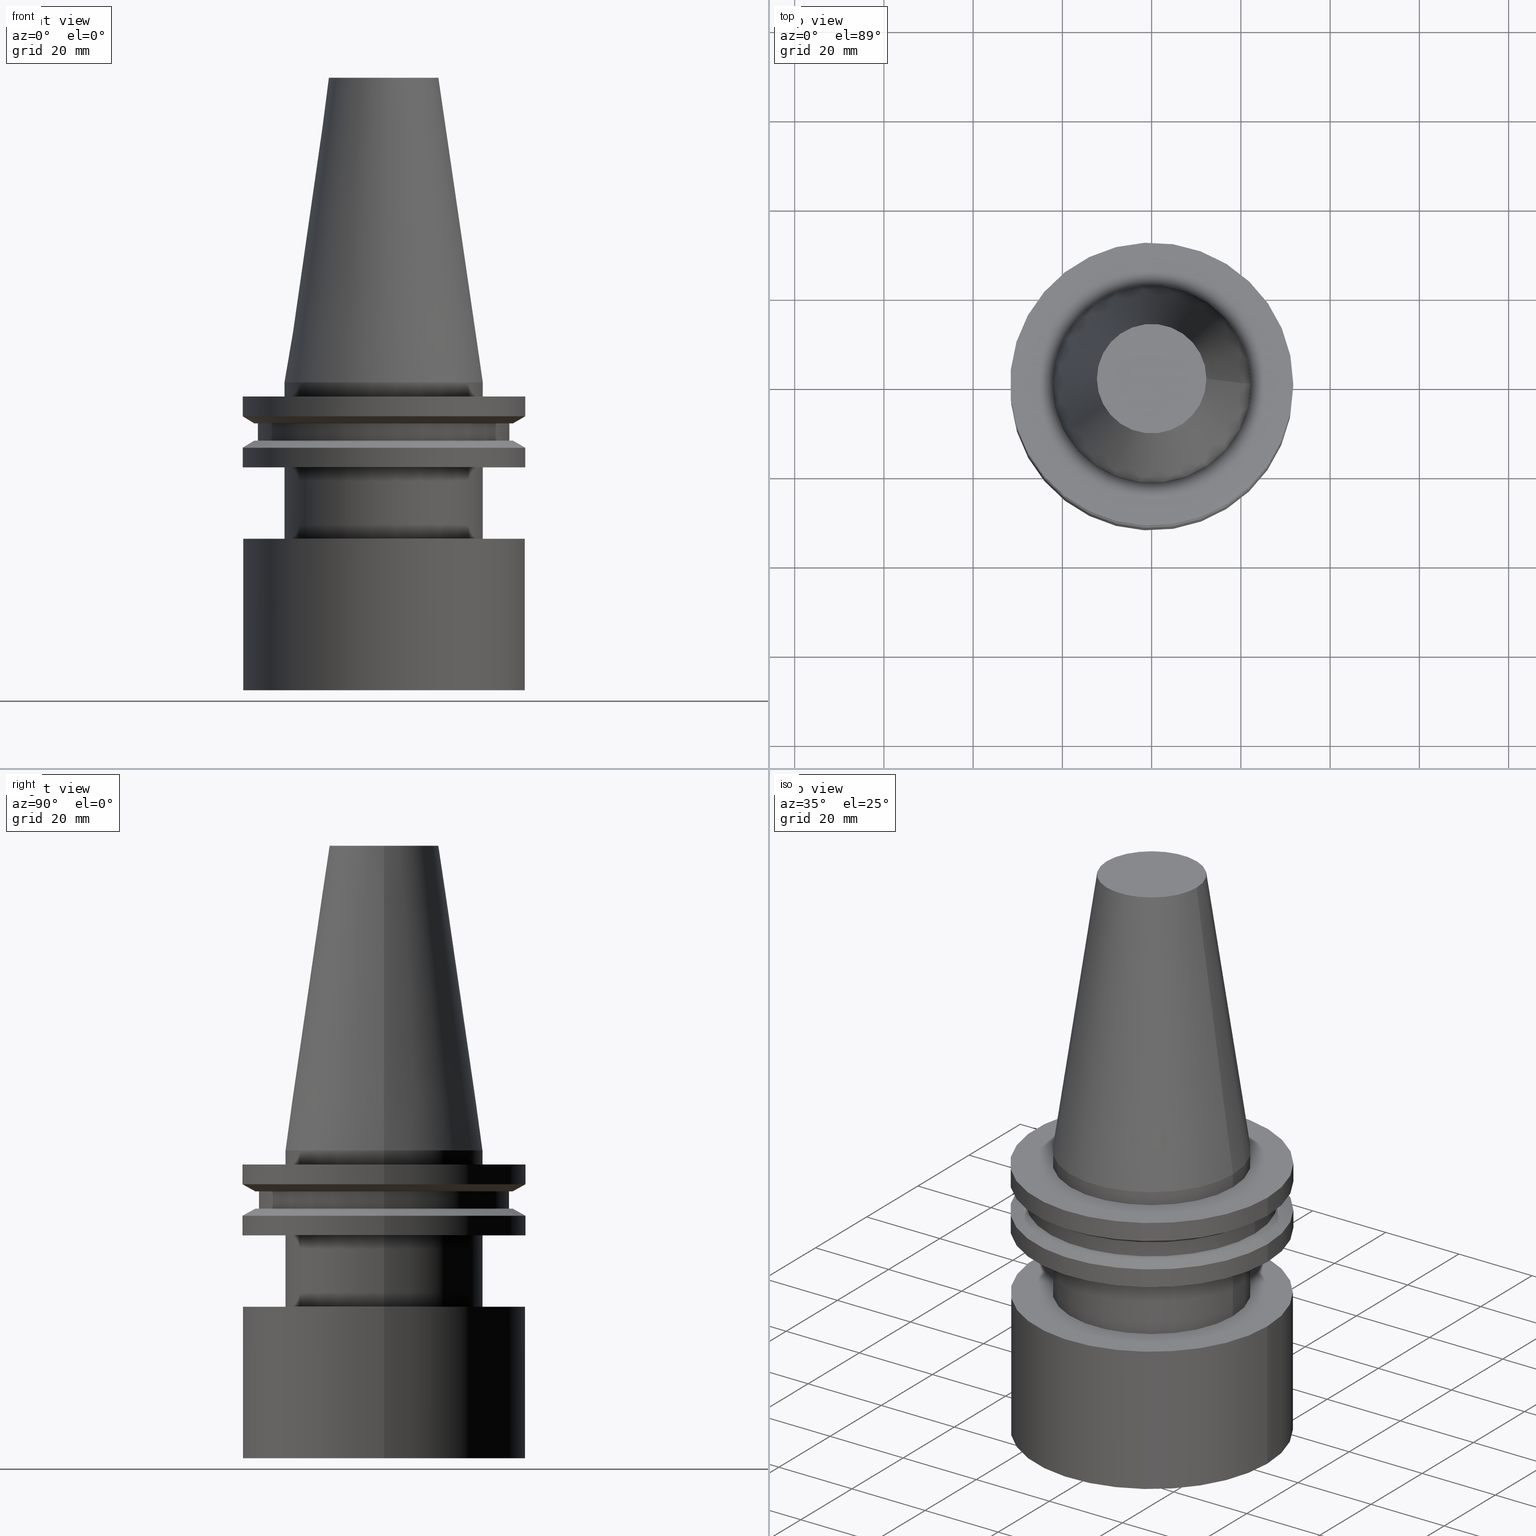
[diagram: canonical four-view strip — front | top / right | iso, engineering-drawing reading convention]
A machine part, canonical four-view strip (front | top / right | iso — engineering-drawing reading convention). The complete STEP part file that produces these views, byte-faithful:
ISO-10303-21;
HEADER;
FILE_DESCRIPTION (( 'STEP AP203' ),
    '1' );
FILE_NAME ('11.326.862.stp',
    '2022-03-09T15:07:12',
    ( '' ),
    ( '' ),
    'SwSTEP 2.0',
    'SolidWorks 2021',
    '' );
FILE_SCHEMA (( 'CONFIG_CONTROL_DESIGN' ));
ENDSEC;

DATA;
#1 = ORIENTED_EDGE ( 'NONE', *, *, #369, .T. ) ;
#2 = FACE_OUTER_BOUND ( 'NONE', #327, .T. ) ;
#3 = CIRCLE ( 'NONE', #89, 22.22500000000000142 ) ;
#4 = EDGE_CURVE ( 'NONE', #235, #235, #127, .T. ) ;
#5 = LOCAL_TIME ( 9, 7, 12.00000000000000000, #203 ) ;
#6 = CC_DESIGN_DATE_AND_TIME_ASSIGNMENT ( #91, #85, ( #378 ) ) ;
#7 = APPROVAL_DATE_TIME ( #123, #83 ) ;
#8 = APPLICATION_CONTEXT ( 'configuration controlled 3d designs of mechanical parts and assemblies' ) ;
#9 = EDGE_CURVE ( 'NONE', #86, #86, #392, .T. ) ;
#10 = EDGE_LOOP ( 'NONE', ( #359 ) ) ;
#11 = EDGE_LOOP ( 'NONE', ( #217 ) ) ;
#12 = AXIS2_PLACEMENT_3D ( 'NONE', #317, #47, #347 ) ;
#13 = CONICAL_SURFACE ( 'NONE', #71, 22.22500000000000142, 0.1448138465474119174 ) ;
#14 = ORIENTED_EDGE ( 'NONE', *, *, #133, .T. ) ;
#15 = DIRECTION ( 'NONE',  ( 1.000000000000000000, 0.000000000000000000, 0.000000000000000000 ) ) ;
#16 = ORIENTED_EDGE ( 'NONE', *, *, #43, .T. ) ;
#17 = CIRCLE ( 'NONE', #251, 31.63499999999999801 ) ;
#18 = CARTESIAN_POINT ( 'NONE',  ( 0.000000000000000000, 0.000000000000000000, -14.65472339340266572 ) ) ;
#19 = DIRECTION ( 'NONE',  ( -1.000000000000000000, 0.000000000000000000, -0.000000000000000000 ) ) ;
#20 = DIRECTION ( 'NONE',  ( 1.000000000000000000, 0.000000000000000000, 0.000000000000000000 ) ) ;
#21 = DIRECTION ( 'NONE',  ( -0.000000000000000000, -0.000000000000000000, 1.000000000000000000 ) ) ;
#22 = DIRECTION ( 'NONE',  ( 0.000000000000000000, 0.000000000000000000, -1.000000000000000000 ) ) ;
#23 = AXIS2_PLACEMENT_3D ( 'NONE', #147, #116, #90 ) ;
#24 = FACE_OUTER_BOUND ( 'NONE', #337, .T. ) ;
#25 = CARTESIAN_POINT ( 'NONE',  ( 22.22500000000000142, 0.000000000000000000, -3.174999999999997158 ) ) ;
#26 = ORIENTED_EDGE ( 'NONE', *, *, #43, .F. ) ;
#27 = PERSON_AND_ORGANIZATION ( #159, #40 ) ;
#28 = DIRECTION ( 'NONE',  ( 0.000000000000000000, -0.000000000000000000, 1.000000000000000000 ) ) ;
#29 = CARTESIAN_POINT ( 'NONE',  ( 0.000000000000000000, 0.000000000000000000, 0.000000000000000000 ) ) ;
#30 = ORIENTED_EDGE ( 'NONE', *, *, #262, .F. ) ;
#31 = DIRECTION ( 'NONE',  ( 0.000000000000000000, 0.000000000000000000, -1.000000000000000000 ) ) ;
#32 = MANIFOLD_SOLID_BREP ( 'CKB', #112 ) ;
#33 = AXIS2_PLACEMENT_3D ( 'NONE', #18, #45, #160 ) ;
#34 = AXIS2_PLACEMENT_3D ( 'NONE', #170, #361, #232 ) ;
#35 = CARTESIAN_POINT ( 'NONE',  ( 0.000000000000000000, 0.000000000000000000, -9.205000000000005400 ) ) ;
#36 = DIRECTION ( 'NONE',  ( -0.000000000000000000, -0.000000000000000000, 1.000000000000000000 ) ) ;
#37 = APPLICATION_CONTEXT ( 'configuration controlled 3d designs of mechanical parts and assemblies' ) ;
#38 = EDGE_LOOP ( 'NONE', ( #84 ) ) ;
#39 = AXIS2_PLACEMENT_3D ( 'NONE', #244, #36, #246 ) ;
#40 = ORGANIZATION ( 'UNSPECIFIED', 'UNSPECIFIED', '' ) ;
#41 = ORIENTED_EDGE ( 'NONE', *, *, #369, .F. ) ;
#42 = CARTESIAN_POINT ( 'NONE',  ( 0.000000000000000000, 0.000000000000000000, -7.605276606597335842 ) ) ;
#43 = EDGE_CURVE ( 'NONE', #358, #358, #312, .T. ) ;
#44 = DIRECTION ( 'NONE',  ( 1.000000000000000000, 0.000000000000000000, 0.000000000000000000 ) ) ;
#45 = DIRECTION ( 'NONE',  ( 0.000000000000000000, 0.000000000000000000, -1.000000000000000000 ) ) ;
#46 = CARTESIAN_POINT ( 'NONE',  ( 0.000000000000000000, 0.000000000000000000, 68.25000000000000000 ) ) ;
#47 = DIRECTION ( 'NONE',  ( -0.000000000000000000, -0.000000000000000000, 1.000000000000000000 ) ) ;
#48 = AXIS2_PLACEMENT_3D ( 'NONE', #352, #349, #19 ) ;
#49 = DIRECTION ( 'NONE',  ( 1.000000000000000000, 0.000000000000000000, 0.000000000000000000 ) ) ;
#50 = AXIS2_PLACEMENT_3D ( 'NONE', #163, #21, #288 ) ;
#51 = CARTESIAN_POINT ( 'NONE',  ( 28.97919780457007732, 0.000000000000000000, -9.205000000000005400 ) ) ;
#52 = VERTEX_POINT ( 'NONE', #340 ) ;
#53 = PLANE ( 'NONE',  #34 ) ;
#54 = EDGE_CURVE ( 'NONE', #210, #210, #99, .T. ) ;
#55 = ORIENTED_EDGE ( 'NONE', *, *, #54, .T. ) ;
#56 = DATE_AND_TIME ( #209, #385 ) ;
#57 = AXIS2_PLACEMENT_3D ( 'NONE', #76, #157, #44 ) ;
#58 = ORIENTED_EDGE ( 'NONE', *, *, #9, .F. ) ;
#59 = CARTESIAN_POINT ( 'NONE',  ( 12.27178102086201150, 0.000000000000000000, 68.25000000000000000 ) ) ;
#60 = EDGE_LOOP ( 'NONE', ( #14 ) ) ;
#61 = APPROVAL_ROLE ( '' ) ;
#62 = FACE_OUTER_BOUND ( 'NONE', #269, .T. ) ;
#63 = VERTEX_POINT ( 'NONE', #113 ) ;
#64 = SHAPE_DEFINITION_REPRESENTATION ( #161, #292 ) ;
#65 =( LENGTH_UNIT ( ) NAMED_UNIT ( * ) SI_UNIT ( .MILLI., .METRE. ) );
#66 = ORIENTED_EDGE ( 'NONE', *, *, #74, .F. ) ;
#67 = EDGE_CURVE ( 'NONE', #270, #270, #137, .T. ) ;
#68 = PLANE ( 'NONE',  #70 ) ;
#69 = ORIENTED_EDGE ( 'NONE', *, *, #4, .F. ) ;
#70 = AXIS2_PLACEMENT_3D ( 'NONE', #311, #129, #375 ) ;
#71 = AXIS2_PLACEMENT_3D ( 'NONE', #29, #31, #331 ) ;
#72 = EDGE_CURVE ( 'NONE', #391, #391, #105, .T. ) ;
#73 = ORIENTED_EDGE ( 'NONE', *, *, #74, .T. ) ;
#74 = EDGE_CURVE ( 'NONE', #52, #52, #245, .T. ) ;
#75 = FACE_BOUND ( 'NONE', #122, .T. ) ;
#76 = CARTESIAN_POINT ( 'NONE',  ( 0.000000000000000000, 0.000000000000000000, -19.04999999999999716 ) ) ;
#77 = FACE_OUTER_BOUND ( 'NONE', #303, .T. ) ;
#78 = PRODUCT ( '11.326.862', '11.326.862', '', ( #111 ) ) ;
#79 = DIRECTION ( 'NONE',  ( 1.000000000000000000, 0.000000000000000000, 0.000000000000000000 ) ) ;
#80 = DIRECTION ( 'NONE',  ( -0.000000000000000000, -0.000000000000000000, 1.000000000000000000 ) ) ;
#81 = FACE_BOUND ( 'NONE', #314, .T. ) ;
#82 = AXIS2_PLACEMENT_3D ( 'NONE', #142, #241, #204 ) ;
#83 = APPROVAL ( #236, 'UNSPECIFIED' ) ;
#84 = ORIENTED_EDGE ( 'NONE', *, *, #72, .T. ) ;
#85 = DATE_TIME_ROLE ( 'classification_date' ) ;
#86 = VERTEX_POINT ( 'NONE', #364 ) ;
#87 = ORIENTED_EDGE ( 'NONE', *, *, #67, .T. ) ;
#88 = CARTESIAN_POINT ( 'NONE',  ( 0.000000000000000000, 31.74999999999999289, -19.04999999999999716 ) ) ;
#89 = AXIS2_PLACEMENT_3D ( 'NONE', #224, #139, #283 ) ;
#90 = DIRECTION ( 'NONE',  ( -1.000000000000000000, 0.000000000000000000, -0.000000000000000000 ) ) ;
#91 = DATE_AND_TIME ( #300, #199 ) ;
#92 = EDGE_LOOP ( 'NONE', ( #328 ) ) ;
#93 = DESIGN_CONTEXT ( 'detailed design', #37, 'design' ) ;
#94 = DIRECTION ( 'NONE',  ( -0.000000000000000000, -0.000000000000000000, 1.000000000000000000 ) ) ;
#95 = EDGE_CURVE ( 'NONE', #293, #293, #354, .T. ) ;
#96 = DIRECTION ( 'NONE',  ( 1.000000000000000000, 0.000000000000000000, 0.000000000000000000 ) ) ;
#97 = EDGE_LOOP ( 'NONE', ( #1 ) ) ;
#98 = ORIENTED_EDGE ( 'NONE', *, *, #219, .T. ) ;
#99 = CIRCLE ( 'NONE', #195, 28.97919780457007732 ) ;
#100 = LOCAL_TIME ( 9, 7, 12.00000000000000000, #114 ) ;
#101 = DIRECTION ( 'NONE',  ( -0.000000000000000000, -0.000000000000000000, 1.000000000000000000 ) ) ;
#102 = CARTESIAN_POINT ( 'NONE',  ( 0.000000000000000000, 0.000000000000000000, 68.25000000000000000 ) ) ;
#103 = APPLICATION_PROTOCOL_DEFINITION ( 'international standard', 'config_control_design', 1994, #37 ) ;
#104 = FACE_OUTER_BOUND ( 'NONE', #329, .T. ) ;
#105 = CIRCLE ( 'NONE', #257, 22.22500000000000142 ) ;
#106 = ADVANCED_FACE ( 'NONE', ( #342 ), #68, .F. ) ;
#107 = CARTESIAN_POINT ( 'NONE',  ( 0.000000000000000000, 0.000000000000000000, 68.25000000000000000 ) ) ;
#108 = FACE_BOUND ( 'NONE', #393, .T. ) ;
#109 = FACE_OUTER_BOUND ( 'NONE', #307, .T. ) ;
#110 = VERTEX_POINT ( 'NONE', #168 ) ;
#111 = MECHANICAL_CONTEXT ( 'NONE', #8, 'mechanical' ) ;
#112 = CLOSED_SHELL ( 'NONE', ( #366, #106, #171, #336, #318, #234, #249, #222, #287, #252, #301, #182, #177, #381, #276, #325 ) ) ;
#113 = CARTESIAN_POINT ( 'NONE',  ( 22.22500000000000142, 0.000000000000000000, -19.04999999999999716 ) ) ;
#114 = COORDINATED_UNIVERSAL_TIME_OFFSET ( 6, 0, .BEHIND. ) ;
#115 = DIRECTION ( 'NONE',  ( 1.000000000000000000, 0.000000000000000000, 0.000000000000000000 ) ) ;
#116 = DIRECTION ( 'NONE',  ( 0.000000000000000000, 0.000000000000000000, -1.000000000000000000 ) ) ;
#117 = COORDINATED_UNIVERSAL_TIME_OFFSET ( 6, 0, .BEHIND. ) ;
#118 = CYLINDRICAL_SURFACE ( 'NONE', #82, 31.75000000000000000 ) ;
#119 = CIRCLE ( 'NONE', #12, 31.75000000000000000 ) ;
#120 = APPROVAL ( #135, 'UNSPECIFIED' ) ;
#121 = PRODUCT_DEFINITION_FORMATION_WITH_SPECIFIED_SOURCE ( 'ANY', '', #78, .NOT_KNOWN. ) ;
#122 = EDGE_LOOP ( 'NONE', ( #201 ) ) ;
#123 = DATE_AND_TIME ( #333, #5 ) ;
#124 = VERTEX_POINT ( 'NONE', #243 ) ;
#125 = ORIENTED_EDGE ( 'NONE', *, *, #9, .T. ) ;
#126 = ORIENTED_EDGE ( 'NONE', *, *, #211, .T. ) ;
#127 = CIRCLE ( 'NONE', #39, 12.27178102086201150 ) ;
#128 = APPROVAL_PERSON_ORGANIZATION ( #265, #322, #233 ) ;
#129 = DIRECTION ( 'NONE',  ( 0.000000000000000000, 0.000000000000000000, -1.000000000000000000 ) ) ;
#130 = EDGE_LOOP ( 'NONE', ( #155 ) ) ;
#131 = EDGE_LOOP ( 'NONE', ( #247 ) ) ;
#132 = DIRECTION ( 'NONE',  ( 1.000000000000000000, 0.000000000000000000, 0.000000000000000000 ) ) ;
#133 = EDGE_CURVE ( 'NONE', #261, #261, #158, .T. ) ;
#134 = FACE_OUTER_BOUND ( 'NONE', #274, .T. ) ;
#135 = APPROVAL_STATUS ( 'not_yet_approved' ) ;
#136 = DIRECTION ( 'NONE',  ( -0.000000000000000000, -0.000000000000000000, 1.000000000000000000 ) ) ;
#137 = CIRCLE ( 'NONE', #299, 28.17999999999999972 ) ;
#138 = AXIS2_PLACEMENT_3D ( 'NONE', #321, #101, #49 ) ;
#139 = DIRECTION ( 'NONE',  ( -0.000000000000000000, -0.000000000000000000, 1.000000000000000000 ) ) ;
#140 = PRODUCT_RELATED_PRODUCT_CATEGORY ( 'detail', '', ( #78 ) ) ;
#141 = PLANE ( 'NONE',  #23 ) ;
#142 = CARTESIAN_POINT ( 'NONE',  ( 0.000000000000000000, 0.000000000000000000, 68.25000000000000000 ) ) ;
#143 = CARTESIAN_POINT ( 'NONE',  ( 31.74999999999999289, 0.000000000000000000, -19.04999999999999716 ) ) ;
#144 = CALENDAR_DATE ( 2022, 9, 3 ) ;
#145 = FACE_OUTER_BOUND ( 'NONE', #131, .T. ) ;
#146 = DIRECTION ( 'NONE',  ( -0.000000000000000000, -0.000000000000000000, 1.000000000000000000 ) ) ;
#147 = CARTESIAN_POINT ( 'NONE',  ( 0.000000000000000000, 0.000000000000000000, -35.04999999999999716 ) ) ;
#148 = PERSON_AND_ORGANIZATION_ROLE ( 'creator' ) ;
#149 = CARTESIAN_POINT ( 'NONE',  ( 31.63499999999999801, 0.000000000000000000, -69.00000000000000000 ) ) ;
#150 = APPROVAL_PERSON_ORGANIZATION ( #348, #120, #61 ) ;
#151 =( NAMED_UNIT ( * ) PLANE_ANGLE_UNIT ( ) SI_UNIT ( $, .RADIAN. ) );
#152 = DIRECTION ( 'NONE',  ( 1.000000000000000000, 0.000000000000000000, 0.000000000000000000 ) ) ;
#153 = DIRECTION ( 'NONE',  ( -0.000000000000000000, -0.000000000000000000, 1.000000000000000000 ) ) ;
#154 = ORIENTED_EDGE ( 'NONE', *, *, #231, .T. ) ;
#155 = ORIENTED_EDGE ( 'NONE', *, *, #95, .T. ) ;
#156 = DIRECTION ( 'NONE',  ( -0.000000000000000000, -0.000000000000000000, 1.000000000000000000 ) ) ;
#157 = DIRECTION ( 'NONE',  ( -0.000000000000000000, -0.000000000000000000, 1.000000000000000000 ) ) ;
#158 = CIRCLE ( 'NONE', #185, 28.17999999999999972 ) ;
#159 = PERSON ( 'UNSPECIFIED', 'UNSPECIFIED', 'UNSPECIFIED', ('UNSPECIFIED'), ('UNSPECIFIED'), ('UNSPECIFIED') ) ;
#160 = DIRECTION ( 'NONE',  ( -1.000000000000000000, 0.000000000000000000, 0.000000000000000000 ) ) ;
#161 = PRODUCT_DEFINITION_SHAPE ( 'NONE', 'NONE',  #191 ) ;
#162 = FACE_OUTER_BOUND ( 'NONE', #60, .T. ) ;
#163 = CARTESIAN_POINT ( 'NONE',  ( 0.000000000000000000, 0.000000000000000000, 0.000000000000000000 ) ) ;
#164 = APPROVAL_PERSON_ORGANIZATION ( #338, #83, #184 ) ;
#165 = CYLINDRICAL_SURFACE ( 'NONE', #344, 28.17999999999999972 ) ;
#166 = CARTESIAN_POINT ( 'NONE',  ( 22.22500000000000142, 0.000000000000000000, 0.000000000000000000 ) ) ;
#167 = FACE_BOUND ( 'NONE', #332, .T. ) ;
#168 = CARTESIAN_POINT ( 'NONE',  ( 31.75000000000000000, 0.000000000000000000, -3.174999999999997158 ) ) ;
#169 = COORDINATED_UNIVERSAL_TIME_OFFSET ( 6, 0, .BEHIND. ) ;
#170 = CARTESIAN_POINT ( 'NONE',  ( 0.000000000000000000, 28.97919780457007732, -9.204999999999996518 ) ) ;
#171 = ADVANCED_FACE ( 'NONE', ( #197, #24 ), #380, .T. ) ;
#172 = PERSON_AND_ORGANIZATION_ROLE ( 'design_supplier' ) ;
#173 = AXIS2_PLACEMENT_3D ( 'NONE', #46, #194, #132 ) ;
#174 = AXIS2_PLACEMENT_3D ( 'NONE', #175, #146, #181 ) ;
#175 = CARTESIAN_POINT ( 'NONE',  ( 0.000000000000000000, 0.000000000000000000, 68.25000000000000000 ) ) ;
#176 = EDGE_LOOP ( 'NONE', ( #208 ) ) ;
#177 = ADVANCED_FACE ( 'NONE', ( #291, #320 ), #346, .T. ) ;
#178 = EDGE_LOOP ( 'NONE', ( #345 ) ) ;
#179 = UNCERTAINTY_MEASURE_WITH_UNIT (LENGTH_MEASURE( 1.000000000000000082E-05 ), #65, 'distance_accuracy_value', 'NONE');
#180 = DATE_AND_TIME ( #308, #324 ) ;
#181 = DIRECTION ( 'NONE',  ( 1.000000000000000000, 0.000000000000000000, 0.000000000000000000 ) ) ;
#182 = ADVANCED_FACE ( 'NONE', ( #253, #319 ), #316, .F. ) ;
#183 = VERTEX_POINT ( 'NONE', #149 ) ;
#184 = APPROVAL_ROLE ( '' ) ;
#185 = AXIS2_PLACEMENT_3D ( 'NONE', #193, #80, #79 ) ;
#186 = CARTESIAN_POINT ( 'NONE',  ( 0.000000000000000000, 0.000000000000000000, -35.04999999999999716 ) ) ;
#187 = EDGE_LOOP ( 'NONE', ( #125 ) ) ;
#188 = CARTESIAN_POINT ( 'NONE',  ( 0.000000000000000000, 0.000000000000000000, -35.04999999999999716 ) ) ;
#189 = DIRECTION ( 'NONE',  ( 1.000000000000000000, 0.000000000000000000, 0.000000000000000000 ) ) ;
#190 = CIRCLE ( 'NONE', #206, 31.75000000000000000 ) ;
#191 = PRODUCT_DEFINITION ( 'UNKNOWN', '', #121, #93 ) ;
#192 = DIRECTION ( 'NONE',  ( 1.000000000000000000, 0.000000000000000000, 0.000000000000000000 ) ) ;
#193 = CARTESIAN_POINT ( 'NONE',  ( 0.000000000000000000, 0.000000000000000000, -13.05499999999999794 ) ) ;
#194 = DIRECTION ( 'NONE',  ( -0.000000000000000000, -0.000000000000000000, 1.000000000000000000 ) ) ;
#195 = AXIS2_PLACEMENT_3D ( 'NONE', #35, #94, #192 ) ;
#196 = CYLINDRICAL_SURFACE ( 'NONE', #50, 31.63499999999999801 ) ;
#197 = FACE_OUTER_BOUND ( 'NONE', #178, .T. ) ;
#198 = DIRECTION ( 'NONE',  ( -0.000000000000000000, -0.000000000000000000, 1.000000000000000000 ) ) ;
#199 = LOCAL_TIME ( 9, 7, 12.00000000000000000, #117 ) ;
#200 = FACE_OUTER_BOUND ( 'NONE', #220, .T. ) ;
#201 = ORIENTED_EDGE ( 'NONE', *, *, #281, .F. ) ;
#202 = DIRECTION ( 'NONE',  ( 0.000000000000000000, 0.000000000000000000, 1.000000000000000000 ) ) ;
#203 = COORDINATED_UNIVERSAL_TIME_OFFSET ( 6, 0, .BEHIND. ) ;
#204 = DIRECTION ( 'NONE',  ( 1.000000000000000000, 0.000000000000000000, 0.000000000000000000 ) ) ;
#205 = AXIS2_PLACEMENT_3D ( 'NONE', #223, #22, #225 ) ;
#206 = AXIS2_PLACEMENT_3D ( 'NONE', #395, #268, #115 ) ;
#207 = FACE_OUTER_BOUND ( 'NONE', #92, .T. ) ;
#208 = ORIENTED_EDGE ( 'NONE', *, *, #4, .T. ) ;
#209 = CALENDAR_DATE ( 2022, 9, 3 ) ;
#210 = VERTEX_POINT ( 'NONE', #51 ) ;
#211 = EDGE_CURVE ( 'NONE', #110, #110, #119, .T. ) ;
#212 = CARTESIAN_POINT ( 'NONE',  ( 31.75000000000000000, 0.000000000000000000, -14.65472339340266572 ) ) ;
#213 = ORIENTED_EDGE ( 'NONE', *, *, #54, .F. ) ;
#214 = APPROVAL_DATE_TIME ( #56, #120 ) ;
#215 = AXIS2_PLACEMENT_3D ( 'NONE', #188, #309, #374 ) ;
#216 = DIRECTION ( 'NONE',  ( -0.000000000000000000, -0.000000000000000000, 1.000000000000000000 ) ) ;
#217 = ORIENTED_EDGE ( 'NONE', *, *, #281, .T. ) ;
#218 = CARTESIAN_POINT ( 'NONE',  ( 0.000000000000000000, 0.000000000000000000, -3.174999999999997158 ) ) ;
#219 = EDGE_CURVE ( 'NONE', #273, #273, #372, .T. ) ;
#220 = EDGE_LOOP ( 'NONE', ( #30 ) ) ;
#221 = CC_DESIGN_APPROVAL ( #83, ( #121 ) ) ;
#222 = ADVANCED_FACE ( 'NONE', ( #77, #162 ), #165, .T. ) ;
#223 = CARTESIAN_POINT ( 'NONE',  ( 0.000000000000000000, 31.75000000000000000, -3.174999999999993605 ) ) ;
#224 = CARTESIAN_POINT ( 'NONE',  ( 0.000000000000000000, 0.000000000000000000, -19.04999999999999716 ) ) ;
#225 = DIRECTION ( 'NONE',  ( -1.000000000000000000, 0.000000000000000000, -0.000000000000000000 ) ) ;
#226 = AXIS2_PLACEMENT_3D ( 'NONE', #42, #156, #341 ) ;
#227 = FACE_OUTER_BOUND ( 'NONE', #97, .T. ) ;
#228 = DIRECTION ( 'NONE',  ( -0.000000000000000000, -0.000000000000000000, 1.000000000000000000 ) ) ;
#229 = DIRECTION ( 'NONE',  ( 0.000000000000000000, -0.000000000000000000, 1.000000000000000000 ) ) ;
#230 = CONICAL_SURFACE ( 'NONE', #313, 28.97919780457007732, 1.047197551196598297 ) ;
#231 = EDGE_CURVE ( 'NONE', #63, #63, #3, .T. ) ;
#232 = DIRECTION ( 'NONE',  ( 1.000000000000000000, 0.000000000000000000, 0.000000000000000000 ) ) ;
#233 = APPROVAL_ROLE ( '' ) ;
#234 = ADVANCED_FACE ( 'NONE', ( #75, #227 ), #271, .T. ) ;
#235 = VERTEX_POINT ( 'NONE', #59 ) ;
#236 = APPROVAL_STATUS ( 'not_yet_approved' ) ;
#237 = ORIENTED_EDGE ( 'NONE', *, *, #262, .T. ) ;
#238 = PERSON_AND_ORGANIZATION ( #159, #40 ) ;
#239 = AXIS2_PLACEMENT_3D ( 'NONE', #186, #310, #15 ) ;
#240 = CIRCLE ( 'NONE', #138, 28.97919780457008088 ) ;
#241 = DIRECTION ( 'NONE',  ( -0.000000000000000000, -0.000000000000000000, 1.000000000000000000 ) ) ;
#242 = SECURITY_CLASSIFICATION_LEVEL ( 'unclassified' ) ;
#243 = CARTESIAN_POINT ( 'NONE',  ( 28.97919780457008088, 0.000000000000000000, -13.05499999999999794 ) ) ;
#244 = CARTESIAN_POINT ( 'NONE',  ( 0.000000000000000000, 0.000000000000000000, 68.25000000000000000 ) ) ;
#245 = CIRCLE ( 'NONE', #226, 31.75000000000000000 ) ;
#246 = DIRECTION ( 'NONE',  ( 1.000000000000000000, 0.000000000000000000, 0.000000000000000000 ) ) ;
#247 = ORIENTED_EDGE ( 'NONE', *, *, #219, .F. ) ;
#248 = ORIENTED_EDGE ( 'NONE', *, *, #95, .F. ) ;
#249 = ADVANCED_FACE ( 'NONE', ( #285, #351 ), #386, .F. ) ;
#250 = DIRECTION ( 'NONE',  ( 1.000000000000000000, 0.000000000000000000, 0.000000000000000000 ) ) ;
#251 = AXIS2_PLACEMENT_3D ( 'NONE', #255, #228, #383 ) ;
#252 = ADVANCED_FACE ( 'NONE', ( #134, #108 ), #230, .T. ) ;
#253 = FACE_BOUND ( 'NONE', #362, .T. ) ;
#254 = PERSON_AND_ORGANIZATION_ROLE ( 'design_owner' ) ;
#255 = CARTESIAN_POINT ( 'NONE',  ( 0.000000000000000000, 0.000000000000000000, -69.00000000000000000 ) ) ;
#256 = CARTESIAN_POINT ( 'NONE',  ( 0.000000000000000000, 0.000000000000000000, -9.205000000000005400 ) ) ;
#257 = AXIS2_PLACEMENT_3D ( 'NONE', #275, #216, #189 ) ;
#258 = CC_DESIGN_PERSON_AND_ORGANIZATION_ASSIGNMENT ( #284, #254, ( #78 ) ) ;
#259 = DIRECTION ( 'NONE',  ( 1.000000000000000000, 0.000000000000000000, 0.000000000000000000 ) ) ;
#260 = CARTESIAN_POINT ( 'NONE',  ( 22.22500000000000142, 0.000000000000000000, -35.04999999999999716 ) ) ;
#261 = VERTEX_POINT ( 'NONE', #389 ) ;
#262 = EDGE_CURVE ( 'NONE', #183, #183, #17, .T. ) ;
#263 = FACE_BOUND ( 'NONE', #278, .T. ) ;
#264 = CC_DESIGN_PERSON_AND_ORGANIZATION_ASSIGNMENT ( #267, #365, ( #378 ) ) ;
#265 = PERSON_AND_ORGANIZATION ( #159, #40 ) ;
#266 = FACE_OUTER_BOUND ( 'NONE', #38, .T. ) ;
#267 = PERSON_AND_ORGANIZATION ( #159, #40 ) ;
#268 = DIRECTION ( 'NONE',  ( -0.000000000000000000, -0.000000000000000000, 1.000000000000000000 ) ) ;
#269 = EDGE_LOOP ( 'NONE', ( #73 ) ) ;
#270 = VERTEX_POINT ( 'NONE', #334 ) ;
#271 = CONICAL_SURFACE ( 'NONE', #33, 31.75000000000000000, 1.047197551196597853 ) ;
#272 = AXIS2_PLACEMENT_3D ( 'NONE', #390, #202, #20 ) ;
#273 = VERTEX_POINT ( 'NONE', #143 ) ;
#274 = EDGE_LOOP ( 'NONE', ( #66 ) ) ;
#275 = CARTESIAN_POINT ( 'NONE',  ( 0.000000000000000000, 0.000000000000000000, 0.000000000000000000 ) ) ;
#276 = ADVANCED_FACE ( 'NONE', ( #104, #384 ), #196, .T. ) ;
#277 =( GEOMETRIC_REPRESENTATION_CONTEXT ( 3 ) GLOBAL_UNCERTAINTY_ASSIGNED_CONTEXT ( ( #179 ) ) GLOBAL_UNIT_ASSIGNED_CONTEXT ( ( #65, #151, #387 ) ) REPRESENTATION_CONTEXT ( 'NONE', 'WORKASPACE' ) );
#278 = EDGE_LOOP ( 'NONE', ( #154 ) ) ;
#279 = CC_DESIGN_APPROVAL ( #322, ( #378 ) ) ;
#280 = EDGE_LOOP ( 'NONE', ( #296 ) ) ;
#281 = EDGE_CURVE ( 'NONE', #124, #124, #240, .T. ) ;
#282 = EDGE_LOOP ( 'NONE', ( #237 ) ) ;
#283 = DIRECTION ( 'NONE',  ( 1.000000000000000000, 0.000000000000000000, 0.000000000000000000 ) ) ;
#284 = PERSON_AND_ORGANIZATION ( #159, #40 ) ;
#285 = FACE_BOUND ( 'NONE', #10, .T. ) ;
#286 = DIRECTION ( 'NONE',  ( 1.000000000000000000, 0.000000000000000000, 0.000000000000000000 ) ) ;
#287 = ADVANCED_FACE ( 'NONE', ( #304, #167 ), #53, .F. ) ;
#288 = DIRECTION ( 'NONE',  ( 1.000000000000000000, 0.000000000000000000, 0.000000000000000000 ) ) ;
#289 = AXIS2_PLACEMENT_3D ( 'NONE', #107, #136, #259 ) ;
#290 = CC_DESIGN_APPROVAL ( #120, ( #191 ) ) ;
#291 = FACE_OUTER_BOUND ( 'NONE', #280, .T. ) ;
#292 = ADVANCED_BREP_SHAPE_REPRESENTATION ( '11.326.862', ( #32, #272 ), #277 ) ;
#293 = VERTEX_POINT ( 'NONE', #25 ) ;
#294 = CYLINDRICAL_SURFACE ( 'NONE', #174, 31.75000000000000000 ) ;
#295 = CC_DESIGN_DATE_AND_TIME_ASSIGNMENT ( #370, #335, ( #191 ) ) ;
#296 = ORIENTED_EDGE ( 'NONE', *, *, #72, .F. ) ;
#297 = PERSON_AND_ORGANIZATION_ROLE ( 'creator' ) ;
#298 = PLANE ( 'NONE',  #323 ) ;
#299 = AXIS2_PLACEMENT_3D ( 'NONE', #371, #315, #152 ) ;
#300 = CALENDAR_DATE ( 2022, 9, 3 ) ;
#301 = ADVANCED_FACE ( 'NONE', ( #207, #62 ), #294, .T. ) ;
#302 = DIRECTION ( 'NONE',  ( 1.000000000000000000, 0.000000000000000000, 0.000000000000000000 ) ) ;
#303 = EDGE_LOOP ( 'NONE', ( #343 ) ) ;
#304 = FACE_OUTER_BOUND ( 'NONE', #368, .T. ) ;
#305 = CC_DESIGN_PERSON_AND_ORGANIZATION_ASSIGNMENT ( #238, #148, ( #121 ) ) ;
#306 = FACE_BOUND ( 'NONE', #356, .T. ) ;
#307 = EDGE_LOOP ( 'NONE', ( #41 ) ) ;
#308 = CALENDAR_DATE ( 2022, 9, 3 ) ;
#309 = DIRECTION ( 'NONE',  ( -0.000000000000000000, -0.000000000000000000, 1.000000000000000000 ) ) ;
#310 = DIRECTION ( 'NONE',  ( -0.000000000000000000, -0.000000000000000000, 1.000000000000000000 ) ) ;
#311 = CARTESIAN_POINT ( 'NONE',  ( 0.000000000000000000, 12.27178102086201150, 68.25000000000000000 ) ) ;
#312 = CIRCLE ( 'NONE', #215, 22.22500000000000142 ) ;
#313 = AXIS2_PLACEMENT_3D ( 'NONE', #256, #379, #286 ) ;
#314 = EDGE_LOOP ( 'NONE', ( #69 ) ) ;
#315 = DIRECTION ( 'NONE',  ( -0.000000000000000000, -0.000000000000000000, 1.000000000000000000 ) ) ;
#316 = PLANE ( 'NONE',  #205 ) ;
#317 = CARTESIAN_POINT ( 'NONE',  ( 0.000000000000000000, 0.000000000000000000, -3.174999999999997158 ) ) ;
#318 = ADVANCED_FACE ( 'NONE', ( #109, #2 ), #118, .T. ) ;
#319 = FACE_OUTER_BOUND ( 'NONE', #376, .T. ) ;
#320 = FACE_OUTER_BOUND ( 'NONE', #130, .T. ) ;
#321 = CARTESIAN_POINT ( 'NONE',  ( 0.000000000000000000, 0.000000000000000000, -13.05499999999999794 ) ) ;
#322 = APPROVAL ( #360, 'UNSPECIFIED' ) ;
#323 = AXIS2_PLACEMENT_3D ( 'NONE', #326, #28, #353 ) ;
#324 = LOCAL_TIME ( 9, 7, 12.00000000000000000, #394 ) ;
#325 = ADVANCED_FACE ( 'NONE', ( #200 ), #298, .F. ) ;
#326 = CARTESIAN_POINT ( 'NONE',  ( 0.000000000000000000, 31.63499999999999801, -69.00000000000000000 ) ) ;
#327 = EDGE_LOOP ( 'NONE', ( #98 ) ) ;
#328 = ORIENTED_EDGE ( 'NONE', *, *, #211, .F. ) ;
#329 = EDGE_LOOP ( 'NONE', ( #58 ) ) ;
#330 = AXIS2_PLACEMENT_3D ( 'NONE', #218, #153, #96 ) ;
#331 = DIRECTION ( 'NONE',  ( -1.000000000000000000, 0.000000000000000000, 0.000000000000000000 ) ) ;
#332 = EDGE_LOOP ( 'NONE', ( #87 ) ) ;
#333 = CALENDAR_DATE ( 2022, 9, 3 ) ;
#334 = CARTESIAN_POINT ( 'NONE',  ( 28.17999999999999972, 0.000000000000000000, -9.204999999999991189 ) ) ;
#335 = DATE_TIME_ROLE ( 'creation_date' ) ;
#336 = ADVANCED_FACE ( 'NONE', ( #145, #263 ), #355, .F. ) ;
#337 = EDGE_LOOP ( 'NONE', ( #16 ) ) ;
#338 = PERSON_AND_ORGANIZATION ( #159, #40 ) ;
#339 = CC_DESIGN_PERSON_AND_ORGANIZATION_ASSIGNMENT ( #27, #172, ( #121 ) ) ;
#340 = CARTESIAN_POINT ( 'NONE',  ( 31.75000000000000000, 0.000000000000000000, -7.605276606597335842 ) ) ;
#341 = DIRECTION ( 'NONE',  ( 1.000000000000000000, 0.000000000000000000, 0.000000000000000000 ) ) ;
#342 = FACE_OUTER_BOUND ( 'NONE', #176, .T. ) ;
#343 = ORIENTED_EDGE ( 'NONE', *, *, #67, .F. ) ;
#344 = AXIS2_PLACEMENT_3D ( 'NONE', #102, #198, #250 ) ;
#345 = ORIENTED_EDGE ( 'NONE', *, *, #231, .F. ) ;
#346 = CYLINDRICAL_SURFACE ( 'NONE', #173, 22.22500000000000142 ) ;
#347 = DIRECTION ( 'NONE',  ( 1.000000000000000000, 0.000000000000000000, 0.000000000000000000 ) ) ;
#348 = PERSON_AND_ORGANIZATION ( #159, #40 ) ;
#349 = DIRECTION ( 'NONE',  ( 0.000000000000000000, 0.000000000000000000, -1.000000000000000000 ) ) ;
#350 = AXIS2_PLACEMENT_3D ( 'NONE', #88, #229, #302 ) ;
#351 = FACE_OUTER_BOUND ( 'NONE', #11, .T. ) ;
#352 = CARTESIAN_POINT ( 'NONE',  ( 0.000000000000000000, 28.17999999999999972, -13.05499999999999794 ) ) ;
#353 = DIRECTION ( 'NONE',  ( 1.000000000000000000, 0.000000000000000000, 0.000000000000000000 ) ) ;
#354 = CIRCLE ( 'NONE', #330, 22.22500000000000142 ) ;
#355 = PLANE ( 'NONE',  #350 ) ;
#356 = EDGE_LOOP ( 'NONE', ( #26 ) ) ;
#357 = APPROVAL_DATE_TIME ( #180, #322 ) ;
#358 = VERTEX_POINT ( 'NONE', #260 ) ;
#359 = ORIENTED_EDGE ( 'NONE', *, *, #133, .F. ) ;
#360 = APPROVAL_STATUS ( 'not_yet_approved' ) ;
#361 = DIRECTION ( 'NONE',  ( 0.000000000000000000, -0.000000000000000000, 1.000000000000000000 ) ) ;
#362 = EDGE_LOOP ( 'NONE', ( #248 ) ) ;
#363 = PERSON_AND_ORGANIZATION ( #159, #40 ) ;
#364 = CARTESIAN_POINT ( 'NONE',  ( 31.63499999999999801, 0.000000000000000000, -35.04999999999999716 ) ) ;
#365 = PERSON_AND_ORGANIZATION_ROLE ( 'classification_officer' ) ;
#366 = ADVANCED_FACE ( 'NONE', ( #81, #266 ), #13, .T. ) ;
#367 = VERTEX_POINT ( 'NONE', #212 ) ;
#368 = EDGE_LOOP ( 'NONE', ( #213 ) ) ;
#369 = EDGE_CURVE ( 'NONE', #367, #367, #190, .T. ) ;
#370 = DATE_AND_TIME ( #144, #100 ) ;
#371 = CARTESIAN_POINT ( 'NONE',  ( 0.000000000000000000, 0.000000000000000000, -9.204999999999991189 ) ) ;
#372 = CIRCLE ( 'NONE', #57, 31.74999999999999289 ) ;
#373 = CC_DESIGN_SECURITY_CLASSIFICATION ( #378, ( #121 ) ) ;
#374 = DIRECTION ( 'NONE',  ( 1.000000000000000000, 0.000000000000000000, 0.000000000000000000 ) ) ;
#375 = DIRECTION ( 'NONE',  ( -1.000000000000000000, 0.000000000000000000, -0.000000000000000000 ) ) ;
#376 = EDGE_LOOP ( 'NONE', ( #126 ) ) ;
#377 = CC_DESIGN_PERSON_AND_ORGANIZATION_ASSIGNMENT ( #363, #297, ( #191 ) ) ;
#378 = SECURITY_CLASSIFICATION ( '', '', #242 ) ;
#379 = DIRECTION ( 'NONE',  ( -0.000000000000000000, -0.000000000000000000, 1.000000000000000000 ) ) ;
#380 = CYLINDRICAL_SURFACE ( 'NONE', #289, 22.22500000000000142 ) ;
#381 = ADVANCED_FACE ( 'NONE', ( #306, #388 ), #141, .F. ) ;
#382 = APPLICATION_PROTOCOL_DEFINITION ( 'international standard', 'config_control_design', 1994, #8 ) ;
#383 = DIRECTION ( 'NONE',  ( 1.000000000000000000, 0.000000000000000000, 0.000000000000000000 ) ) ;
#384 = FACE_OUTER_BOUND ( 'NONE', #282, .T. ) ;
#385 = LOCAL_TIME ( 9, 7, 12.00000000000000000, #169 ) ;
#386 = PLANE ( 'NONE',  #48 ) ;
#387 =( NAMED_UNIT ( * ) SI_UNIT ( $, .STERADIAN. ) SOLID_ANGLE_UNIT ( ) );
#388 = FACE_OUTER_BOUND ( 'NONE', #187, .T. ) ;
#389 = CARTESIAN_POINT ( 'NONE',  ( 28.17999999999999972, 0.000000000000000000, -13.05499999999999794 ) ) ;
#390 = CARTESIAN_POINT ( 'NONE',  ( 0.000000000000000000, 0.000000000000000000, 0.000000000000000000 ) ) ;
#391 = VERTEX_POINT ( 'NONE', #166 ) ;
#392 = CIRCLE ( 'NONE', #239, 31.63499999999999801 ) ;
#393 = EDGE_LOOP ( 'NONE', ( #55 ) ) ;
#394 = COORDINATED_UNIVERSAL_TIME_OFFSET ( 6, 0, .BEHIND. ) ;
#395 = CARTESIAN_POINT ( 'NONE',  ( 0.000000000000000000, 0.000000000000000000, -14.65472339340266572 ) ) ;
ENDSEC;
END-ISO-10303-21;
